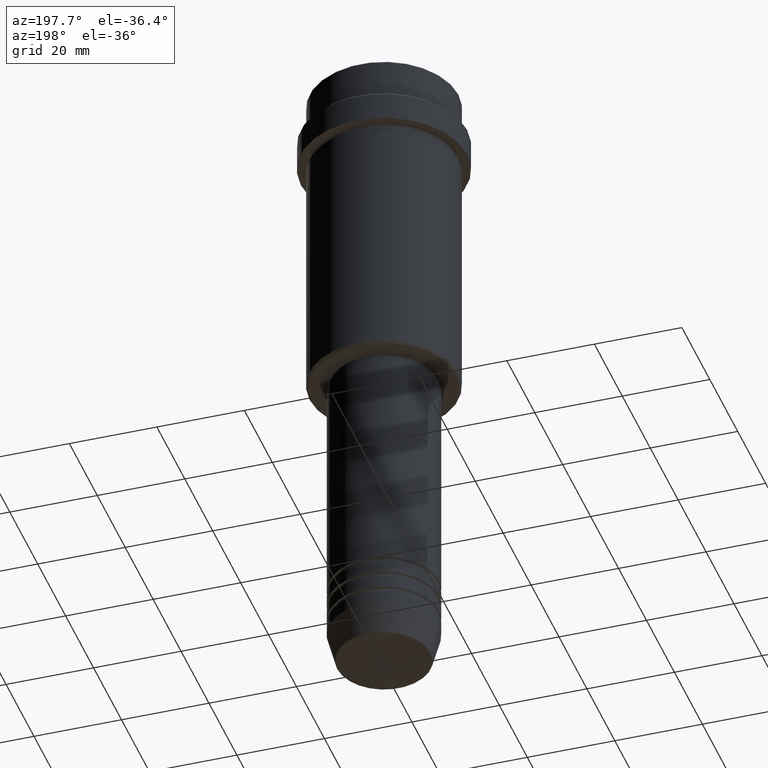
[diagram: clean part render]
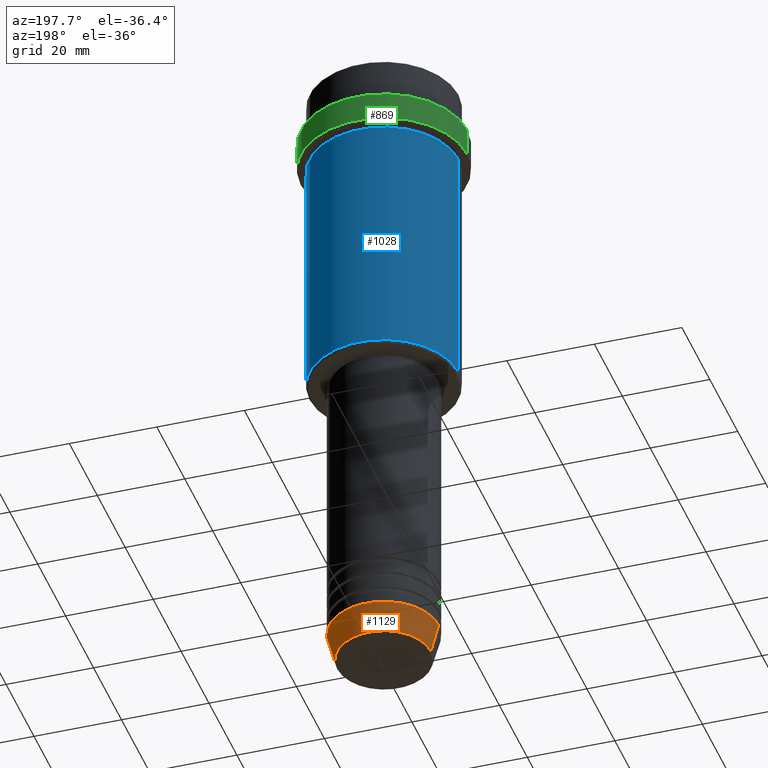
[diagram: same view with three faces highlighted in distinct colors, each labeled with its STEP entity id]
A machine part, auxiliary view with three faces highlighted in distinct colors.
Their STEP definitions:

[orange] entity #1129 — the highlighted conical surface has half-angle 15 deg.
#25 = DIRECTION ( 'NONE',  ( -0.2588190451025213501, 3.169619151431772337E-17, 0.9659258262890680902 ) ) ;
#64 = VERTEX_POINT ( 'NONE', #947 ) ;
#77 = CONICAL_SURFACE ( 'NONE', #1209, 12.50000000000000000, 0.2617993877991500740 ) ;
#85 = VERTEX_POINT ( 'NONE', #481 ) ;
#167 = EDGE_CURVE ( 'NONE', #85, #837, #488, .T. ) ;
#200 = CARTESIAN_POINT ( 'NONE',  ( 0.000000000000000000, 0.000000000000000000, -143.0000000000000284 ) ) ;
#229 = DIRECTION ( 'NONE',  ( -0.000000000000000000, -0.000000000000000000, 1.000000000000000000 ) ) ;
#312 = VERTEX_POINT ( 'NONE', #1329 ) ;
#341 = ORIENTED_EDGE ( 'NONE', *, *, #752, .T. ) ;
#348 = CARTESIAN_POINT ( 'NONE',  ( 12.50000000000000000, 0.000000000000000000, -143.0000000000000284 ) ) ;
#431 = ORIENTED_EDGE ( 'NONE', *, *, #674, .T. ) ;
#481 = CARTESIAN_POINT ( 'NONE',  ( 12.50000000000000000, 0.000000000000000000, -143.0000000000000284 ) ) ;
#488 = CIRCLE ( 'NONE', #678, 12.50000000000000000 ) ;
#568 = DIRECTION ( 'NONE',  ( 0.2588190451025213501, 0.000000000000000000, 0.9659258262890680902 ) ) ;
#610 = VECTOR ( 'NONE', #568, 1000.000000000000000 ) ;
#670 = EDGE_LOOP ( 'NONE', ( #341, #431, #1150, #1057 ) ) ;
#674 = EDGE_CURVE ( 'NONE', #312, #837, #1099, .T. ) ;
#678 = AXIS2_PLACEMENT_3D ( 'NONE', #200, #1408, #782 ) ;
#681 = AXIS2_PLACEMENT_3D ( 'NONE', #766, #229, #1106 ) ;
#686 = EDGE_CURVE ( 'NONE', #64, #85, #1335, .T. ) ;
#752 = EDGE_CURVE ( 'NONE', #64, #312, #1304, .T. ) ;
#766 = CARTESIAN_POINT ( 'NONE',  ( 0.000000000000000000, 0.000000000000000000, -149.6294095225512990 ) ) ;
#782 = DIRECTION ( 'NONE',  ( 1.000000000000000000, 0.000000000000000000, 0.000000000000000000 ) ) ;
#803 = CARTESIAN_POINT ( 'NONE',  ( -12.50000000000000000, 1.530808498934191521E-15, -143.0000000000000284 ) ) ;
#808 = VECTOR ( 'NONE', #25, 1000.000000000000000 ) ;
#837 = VERTEX_POINT ( 'NONE', #803 ) ;
#896 = DIRECTION ( 'NONE',  ( -0.000000000000000000, -0.000000000000000000, 1.000000000000000000 ) ) ;
#947 = CARTESIAN_POINT ( 'NONE',  ( 10.72365507213718416, 0.000000000000000000, -149.6294095225512990 ) ) ;
#982 = CARTESIAN_POINT ( 'NONE',  ( 0.000000000000000000, 0.000000000000000000, -143.0000000000000284 ) ) ;
#1057 = ORIENTED_EDGE ( 'NONE', *, *, #686, .F. ) ;
#1071 = CARTESIAN_POINT ( 'NONE',  ( -12.50000000000000000, 1.530808498934191521E-15, -143.0000000000000284 ) ) ;
#1099 = LINE ( 'NONE', #1071, #808 ) ;
#1105 = DIRECTION ( 'NONE',  ( 1.000000000000000000, 0.000000000000000000, 0.000000000000000000 ) ) ;
#1106 = DIRECTION ( 'NONE',  ( 1.000000000000000000, 0.000000000000000000, 0.000000000000000000 ) ) ;
#1129 = ADVANCED_FACE ( 'NONE', ( #1344 ), #77, .T. ) ;
#1150 = ORIENTED_EDGE ( 'NONE', *, *, #167, .F. ) ;
#1209 = AXIS2_PLACEMENT_3D ( 'NONE', #982, #896, #1105 ) ;
#1304 = CIRCLE ( 'NONE', #681, 10.72365507213718416 ) ;
#1329 = CARTESIAN_POINT ( 'NONE',  ( -10.72365507213718416, 1.422038742429750121E-15, -149.6294095225512990 ) ) ;
#1335 = LINE ( 'NONE', #348, #610 ) ;
#1344 = FACE_OUTER_BOUND ( 'NONE', #670, .T. ) ;
#1408 = DIRECTION ( 'NONE',  ( -0.000000000000000000, -0.000000000000000000, 1.000000000000000000 ) ) ;

[blue] entity #1028 — the highlighted cylindrical surface (partial cylindrical patch) has radius 17 mm, axis along (-0, -0, 1).
#6 = AXIS2_PLACEMENT_3D ( 'NONE', #13, #425, #866 ) ;
#13 = CARTESIAN_POINT ( 'NONE',  ( 0.000000000000000000, 0.000000000000000000, 0.000000000000000000 ) ) ;
#17 = LINE ( 'NONE', #1214, #1322 ) ;
#24 = CARTESIAN_POINT ( 'NONE',  ( -16.99999999999998579, 2.081899558550499491E-15, -18.00000000000000711 ) ) ;
#43 = EDGE_CURVE ( 'NONE', #904, #193, #452, .T. ) ;
#131 = CARTESIAN_POINT ( 'NONE',  ( -16.99999999999999289, 2.081899558550499885E-15, 0.000000000000000000 ) ) ;
#193 = VERTEX_POINT ( 'NONE', #24 ) ;
#245 = EDGE_CURVE ( 'NONE', #1041, #904, #17, .T. ) ;
#425 = DIRECTION ( 'NONE',  ( -0.000000000000000000, -0.000000000000000000, 1.000000000000000000 ) ) ;
#452 = CIRCLE ( 'NONE', #725, 16.99999999999998579 ) ;
#469 = EDGE_CURVE ( 'NONE', #1224, #193, #1134, .T. ) ;
#530 = FACE_OUTER_BOUND ( 'NONE', #764, .T. ) ;
#535 = ORIENTED_EDGE ( 'NONE', *, *, #1318, .T. ) ;
#631 = CARTESIAN_POINT ( 'NONE',  ( 0.000000000000000000, 0.000000000000000000, -75.49999999999998579 ) ) ;
#658 = ORIENTED_EDGE ( 'NONE', *, *, #245, .F. ) ;
#679 = VECTOR ( 'NONE', #781, 1000.000000000000000 ) ;
#705 = AXIS2_PLACEMENT_3D ( 'NONE', #631, #960, #965 ) ;
#725 = AXIS2_PLACEMENT_3D ( 'NONE', #1213, #850, #1178 ) ;
#764 = EDGE_LOOP ( 'NONE', ( #535, #849, #1387, #658 ) ) ;
#781 = DIRECTION ( 'NONE',  ( -0.000000000000000000, -0.000000000000000000, 1.000000000000000000 ) ) ;
#849 = ORIENTED_EDGE ( 'NONE', *, *, #469, .T. ) ;
#850 = DIRECTION ( 'NONE',  ( -0.000000000000000000, -0.000000000000000000, 1.000000000000000000 ) ) ;
#866 = DIRECTION ( 'NONE',  ( 1.000000000000000000, 0.000000000000000000, 0.000000000000000000 ) ) ;
#904 = VERTEX_POINT ( 'NONE', #1138 ) ;
#960 = DIRECTION ( 'NONE',  ( -0.000000000000000000, -0.000000000000000000, 1.000000000000000000 ) ) ;
#965 = DIRECTION ( 'NONE',  ( -1.000000000000000000, 0.000000000000000000, 0.000000000000000000 ) ) ;
#1028 = ADVANCED_FACE ( 'NONE', ( #530 ), #1416, .T. ) ;
#1041 = VERTEX_POINT ( 'NONE', #1220 ) ;
#1134 = LINE ( 'NONE', #131, #679 ) ;
#1138 = CARTESIAN_POINT ( 'NONE',  ( 16.99999999999998579, 0.000000000000000000, -18.00000000000000711 ) ) ;
#1178 = DIRECTION ( 'NONE',  ( 1.000000000000000000, 0.000000000000000000, 0.000000000000000000 ) ) ;
#1212 = CIRCLE ( 'NONE', #705, 16.99999999999999289 ) ;
#1213 = CARTESIAN_POINT ( 'NONE',  ( 0.000000000000000000, 0.000000000000000000, -18.00000000000000711 ) ) ;
#1214 = CARTESIAN_POINT ( 'NONE',  ( 16.99999999999999289, 0.000000000000000000, 0.000000000000000000 ) ) ;
#1220 = CARTESIAN_POINT ( 'NONE',  ( 16.99999999999999289, 0.000000000000000000, -75.49999999999998579 ) ) ;
#1224 = VERTEX_POINT ( 'NONE', #1354 ) ;
#1225 = DIRECTION ( 'NONE',  ( -0.000000000000000000, -0.000000000000000000, 1.000000000000000000 ) ) ;
#1318 = EDGE_CURVE ( 'NONE', #1041, #1224, #1212, .T. ) ;
#1322 = VECTOR ( 'NONE', #1225, 1000.000000000000000 ) ;
#1354 = CARTESIAN_POINT ( 'NONE',  ( -16.99999999999999289, 2.081899558550499885E-15, -75.49999999999998579 ) ) ;
#1387 = ORIENTED_EDGE ( 'NONE', *, *, #43, .F. ) ;
#1416 = CYLINDRICAL_SURFACE ( 'NONE', #6, 16.99999999999999289 ) ;

[green] entity #869 — the highlighted cylindrical surface (partial cylindrical patch) has radius 19 mm, axis along (-0, -0, 1).
#15 = ORIENTED_EDGE ( 'NONE', *, *, #907, .F. ) ;
#49 = AXIS2_PLACEMENT_3D ( 'NONE', #776, #966, #447 ) ;
#69 = LINE ( 'NONE', #279, #729 ) ;
#73 = VECTOR ( 'NONE', #1125, 1000.000000000000000 ) ;
#78 = CARTESIAN_POINT ( 'NONE',  ( 18.99999999999998579, 0.000000000000000000, -10.50000000000001243 ) ) ;
#80 = VERTEX_POINT ( 'NONE', #78 ) ;
#168 = VERTEX_POINT ( 'NONE', #319 ) ;
#195 = CARTESIAN_POINT ( 'NONE',  ( -18.99999999999998579, 2.326828918379969393E-15, -17.00000000000000000 ) ) ;
#199 = CIRCLE ( 'NONE', #1015, 18.99999999999998579 ) ;
#255 = DIRECTION ( 'NONE',  ( 1.000000000000000000, 0.000000000000000000, 0.000000000000000000 ) ) ;
#279 = CARTESIAN_POINT ( 'NONE',  ( 18.99999999999998579, 0.000000000000000000, 0.000000000000000000 ) ) ;
#319 = CARTESIAN_POINT ( 'NONE',  ( -18.99999999999998579, 2.326828918379969393E-15, -10.50000000000001243 ) ) ;
#353 = CARTESIAN_POINT ( 'NONE',  ( -18.99999999999998579, 2.326828918379969393E-15, 0.000000000000000000 ) ) ;
#397 = EDGE_CURVE ( 'NONE', #543, #1314, #538, .T. ) ;
#399 = ORIENTED_EDGE ( 'NONE', *, *, #478, .T. ) ;
#447 = DIRECTION ( 'NONE',  ( 1.000000000000000000, 0.000000000000000000, 0.000000000000000000 ) ) ;
#467 = DIRECTION ( 'NONE',  ( -0.000000000000000000, -0.000000000000000000, 1.000000000000000000 ) ) ;
#478 = EDGE_CURVE ( 'NONE', #1314, #168, #1353, .T. ) ;
#483 = CARTESIAN_POINT ( 'NONE',  ( 0.000000000000000000, 0.000000000000000000, 0.000000000000000000 ) ) ;
#518 = AXIS2_PLACEMENT_3D ( 'NONE', #483, #467, #255 ) ;
#533 = CARTESIAN_POINT ( 'NONE',  ( 0.000000000000000000, 0.000000000000000000, -10.50000000000001243 ) ) ;
#538 = CIRCLE ( 'NONE', #49, 18.99999999999998579 ) ;
#543 = VERTEX_POINT ( 'NONE', #1347 ) ;
#660 = EDGE_LOOP ( 'NONE', ( #932, #399, #1290, #15 ) ) ;
#696 = EDGE_CURVE ( 'NONE', #168, #80, #199, .T. ) ;
#720 = DIRECTION ( 'NONE',  ( -0.000000000000000000, -0.000000000000000000, 1.000000000000000000 ) ) ;
#729 = VECTOR ( 'NONE', #720, 1000.000000000000000 ) ;
#776 = CARTESIAN_POINT ( 'NONE',  ( 0.000000000000000000, 0.000000000000000000, -17.00000000000000000 ) ) ;
#798 = FACE_OUTER_BOUND ( 'NONE', #660, .T. ) ;
#869 = ADVANCED_FACE ( 'NONE', ( #798 ), #1242, .T. ) ;
#907 = EDGE_CURVE ( 'NONE', #543, #80, #69, .T. ) ;
#932 = ORIENTED_EDGE ( 'NONE', *, *, #397, .T. ) ;
#936 = DIRECTION ( 'NONE',  ( 0.000000000000000000, 0.000000000000000000, -1.000000000000000000 ) ) ;
#966 = DIRECTION ( 'NONE',  ( -0.000000000000000000, -0.000000000000000000, 1.000000000000000000 ) ) ;
#1015 = AXIS2_PLACEMENT_3D ( 'NONE', #533, #936, #1124 ) ;
#1124 = DIRECTION ( 'NONE',  ( 1.000000000000000000, 0.000000000000000000, 0.000000000000000000 ) ) ;
#1125 = DIRECTION ( 'NONE',  ( -0.000000000000000000, -0.000000000000000000, 1.000000000000000000 ) ) ;
#1242 = CYLINDRICAL_SURFACE ( 'NONE', #518, 18.99999999999998579 ) ;
#1290 = ORIENTED_EDGE ( 'NONE', *, *, #696, .T. ) ;
#1314 = VERTEX_POINT ( 'NONE', #195 ) ;
#1347 = CARTESIAN_POINT ( 'NONE',  ( 18.99999999999998579, 0.000000000000000000, -17.00000000000000000 ) ) ;
#1353 = LINE ( 'NONE', #353, #73 ) ;